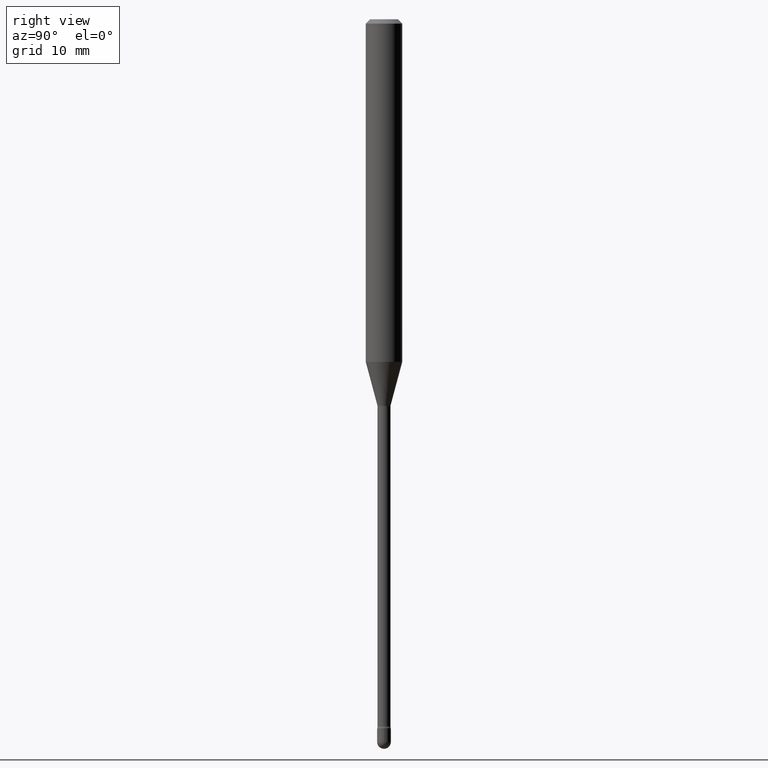
[diagram: clean part render]
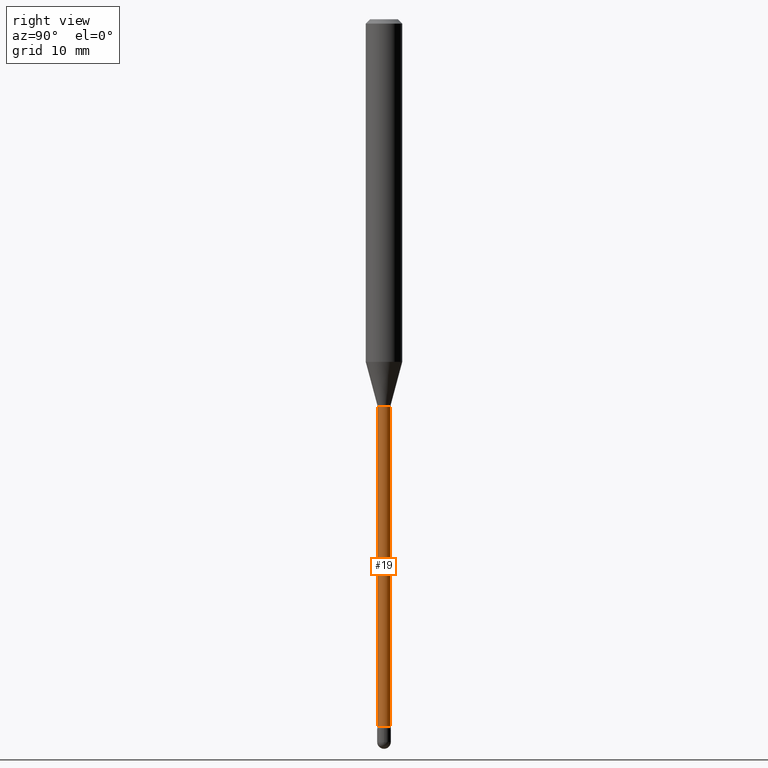
[diagram: same view with one face highlighted and labeled with its STEP entity id]
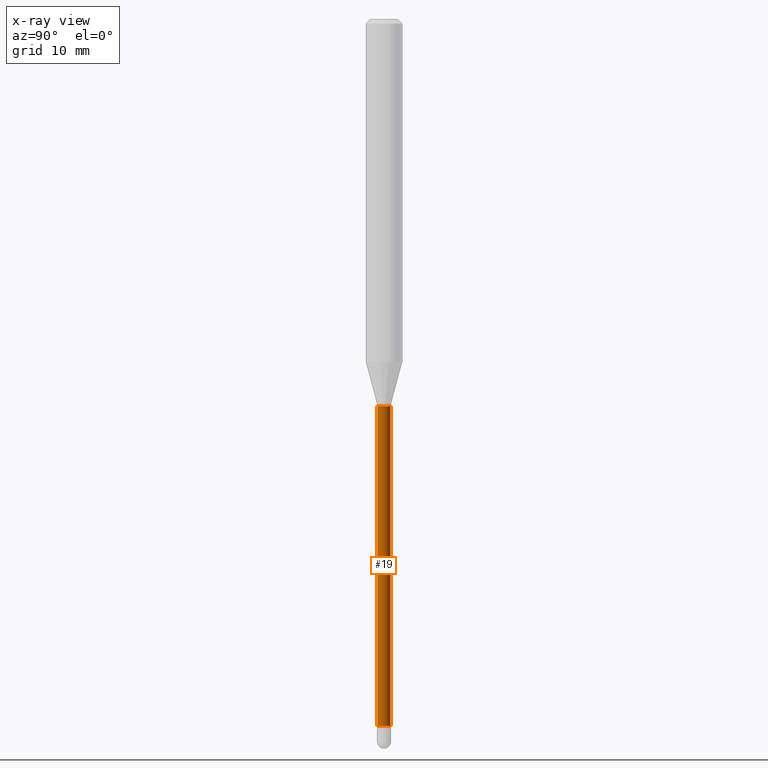
[diagram: x-ray of the same camera — body ghosted, the highlighted face saturated]
A machine part, right view. The second image highlights one B-rep face of the part: STEP entity #19.
The next image is the same camera in x-ray: the body ghosted, the highlighted face saturated — about 0% of this face is hidden behind the body in this view.
In plain terms, the highlighted cylindrical surface (edge-blend (fillet) strip) has radius 0.5613 mm, axis along (-0, 0, 1).
Its self-contained STEP definition (entity closure, byte-faithful):
#19 = ADVANCED_FACE ( 'NONE', ( #510 ), #71, .T. ) ;
#23 = CARTESIAN_POINT ( 'NONE',  ( 1.570299446029823742E-16, 0.02210000000000003628, 4.009112815389543820E-16 ) ) ;
#30 = DIRECTION ( 'NONE',  ( -2.445456806742390166E-29, 3.491498522728124281E-15, 1.000000000000000000 ) ) ;
#41 = EDGE_CURVE ( 'NONE', #56, #192, #289, .T. ) ;
#56 = VERTEX_POINT ( 'NONE', #559 ) ;
#58 = EDGE_LOOP ( 'NONE', ( #453, #404, #182, #131 ) ) ;
#63 = DIRECTION ( 'NONE',  ( -2.445456806742390166E-29, 3.491498522728124281E-15, 1.000000000000000000 ) ) ;
#71 = CYLINDRICAL_SURFACE ( 'NONE', #150, 0.02210000000000003628 ) ;
#73 = EDGE_CURVE ( 'NONE', #56, #504, #362, .T. ) ;
#85 = CARTESIAN_POINT ( 'NONE',  ( -1.543234751768340203E-16, -0.02210000000000463330, -1.326974787463811145 ) ) ;
#123 = DIRECTION ( 'NONE',  ( -6.982962677686265922E-15, -1.000000000000000000, 0.000000000000000000 ) ) ;
#131 = ORIENTED_EDGE ( 'NONE', *, *, #41, .F. ) ;
#150 = AXIS2_PLACEMENT_3D ( 'NONE', #383, #63, #425 ) ;
#182 = ORIENTED_EDGE ( 'NONE', *, *, #466, .F. ) ;
#192 = VERTEX_POINT ( 'NONE', #85 ) ;
#198 = CIRCLE ( 'NONE', #338, 0.02210000000000000159 ) ;
#204 = CARTESIAN_POINT ( 'NONE',  ( 3.245059526378913467E-29, -4.633130510127363484E-15, -1.326974787463811145 ) ) ;
#241 = CARTESIAN_POINT ( 'NONE',  ( 1.570299446030416867E-16, 0.02209999999999536988, -1.326974787463811145 ) ) ;
#243 = VECTOR ( 'NONE', #555, 39.37007874015748143 ) ;
#252 = CARTESIAN_POINT ( 'NONE',  ( -1.543234751768667333E-16, -0.02210000000000003628, 5.552355162435376952E-16 ) ) ;
#266 = VECTOR ( 'NONE', #290, 39.37007874015748143 ) ;
#286 = LINE ( 'NONE', #23, #266 ) ;
#287 = DIRECTION ( 'NONE',  ( -6.982962677686265133E-15, -1.000000000000000000, 0.000000000000000000 ) ) ;
#289 = LINE ( 'NONE', #252, #243 ) ;
#290 = DIRECTION ( 'NONE',  ( -2.445456806742389886E-29, 3.491498522728124281E-15, 1.000000000000000000 ) ) ;
#338 = AXIS2_PLACEMENT_3D ( 'NONE', #204, #430, #123 ) ;
#340 = CARTESIAN_POINT ( 'NONE',  ( 1.620037437533623579E-16, 0.02209999999999160900, -2.422672283192177645 ) ) ;
#359 = VERTEX_POINT ( 'NONE', #241 ) ;
#362 = CIRCLE ( 'NONE', #461, 0.02210000000000007098 ) ;
#383 = CARTESIAN_POINT ( 'NONE',  ( -1.169113584055446105E-44, 1.669184350826100908E-30, 4.780733988912460139E-16 ) ) ;
#404 = ORIENTED_EDGE ( 'NONE', *, *, #407, .T. ) ;
#407 = EDGE_CURVE ( 'NONE', #504, #359, #286, .T. ) ;
#425 = DIRECTION ( 'NONE',  ( -6.982962677686265922E-15, -1.000000000000000000, 3.491498522728123492E-15 ) ) ;
#430 = DIRECTION ( 'NONE',  ( -2.445456806742390166E-29, 3.491498522728124281E-15, 1.000000000000000000 ) ) ;
#453 = ORIENTED_EDGE ( 'NONE', *, *, #73, .T. ) ;
#461 = AXIS2_PLACEMENT_3D ( 'NONE', #462, #30, #287 ) ;
#462 = CARTESIAN_POINT ( 'NONE',  ( 5.924540425438438156E-29, -8.458756697819860632E-15, -2.422672283192177645 ) ) ;
#466 = EDGE_CURVE ( 'NONE', #192, #359, #198, .T. ) ;
#504 = VERTEX_POINT ( 'NONE', #340 ) ;
#510 = FACE_OUTER_BOUND ( 'NONE', #58, .T. ) ;
#555 = DIRECTION ( 'NONE',  ( -2.445456806742389886E-29, 3.491498522728124281E-15, 1.000000000000000000 ) ) ;
#559 = CARTESIAN_POINT ( 'NONE',  ( -1.543234751768077413E-16, -0.02210000000000852949, -2.422672283192177645 ) ) ;